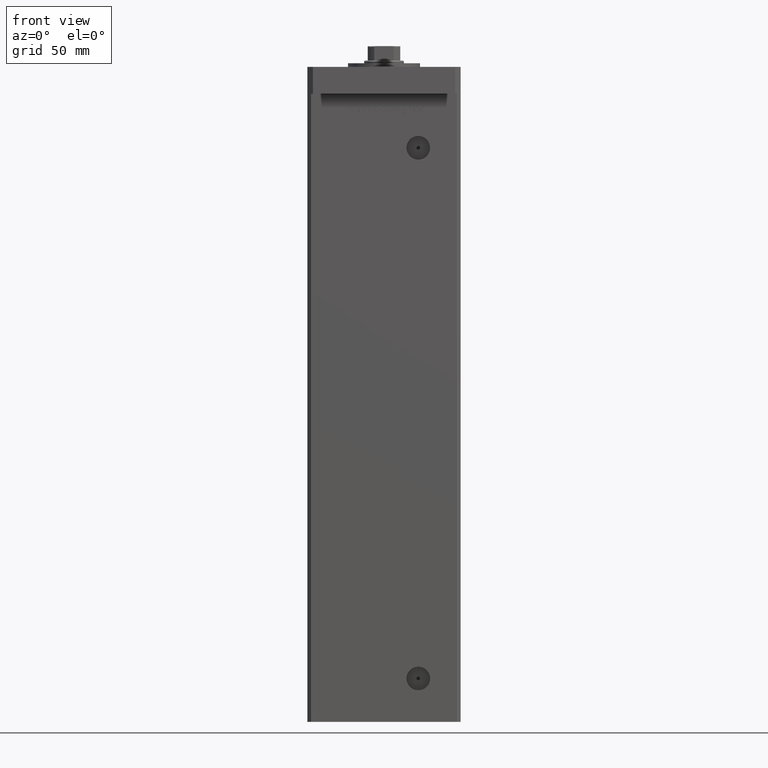
[diagram: clean part render]
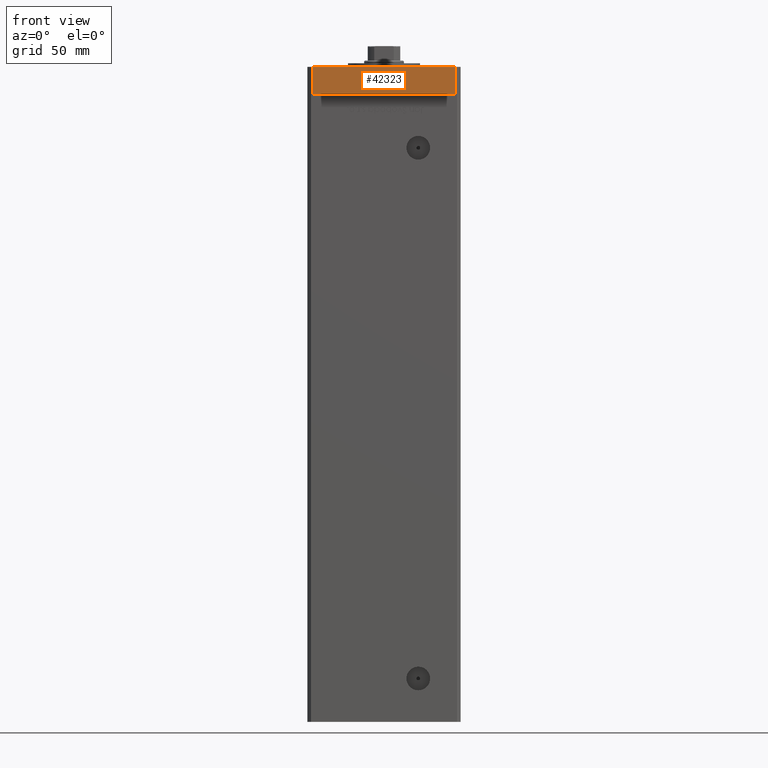
[diagram: same view with one face highlighted and labeled with its STEP entity id]
A machine part, front view. The second image highlights one B-rep face of the part: STEP entity #42323.
In plain terms, the highlighted planar face has unit normal (-0, 1, 0).
Its self-contained STEP definition (entity closure, byte-faithful):
#1050 = AXIS2_PLACEMENT_3D ( 'NONE', #38758, #29804, #8937 ) ;
#1702 = LINE ( 'NONE', #43723, #26239 ) ;
#4688 = ORIENTED_EDGE ( 'NONE', *, *, #12724, .F. ) ;
#5036 = EDGE_CURVE ( 'NONE', #52828, #27276, #34991, .T. ) ;
#5404 = PLANE ( 'NONE',  #1050 ) ;
#8937 = DIRECTION ( 'NONE',  ( -1.000000000000000000, -1.405345600791337191E-15, 0.000000000000000000 ) ) ;
#12724 = EDGE_CURVE ( 'NONE', #36042, #15094, #1702, .T. ) ;
#13513 = CARTESIAN_POINT ( 'NONE',  ( 39.50000000000001421, -64.99999999999988631, 15.00000000000000000 ) ) ;
#13532 = FACE_OUTER_BOUND ( 'NONE', #47920, .T. ) ;
#14149 = DIRECTION ( 'NONE',  ( -0.000000000000000000, -0.000000000000000000, -1.000000000000000000 ) ) ;
#14363 = CARTESIAN_POINT ( 'NONE',  ( -39.50000000000000000, -65.00000000000000000, 0.000000000000000000 ) ) ;
#15094 = VERTEX_POINT ( 'NONE', #13513 ) ;
#18227 = LINE ( 'NONE', #51332, #48803 ) ;
#18238 = DIRECTION ( 'NONE',  ( 1.000000000000000000, 1.405345600791337191E-15, 0.000000000000000000 ) ) ;
#22549 = ORIENTED_EDGE ( 'NONE', *, *, #45313, .T. ) ;
#26239 = VECTOR ( 'NONE', #18238, 1000.000000000000000 ) ;
#26665 = DIRECTION ( 'NONE',  ( -0.000000000000000000, -0.000000000000000000, -1.000000000000000000 ) ) ;
#27276 = VERTEX_POINT ( 'NONE', #42771 ) ;
#29804 = DIRECTION ( 'NONE',  ( -1.405345600791337191E-15, 1.000000000000000000, 0.000000000000000000 ) ) ;
#31090 = VECTOR ( 'NONE', #26665, 1000.000000000000000 ) ;
#34391 = EDGE_CURVE ( 'NONE', #15094, #27276, #39675, .T. ) ;
#34991 = LINE ( 'NONE', #47752, #38980 ) ;
#36042 = VERTEX_POINT ( 'NONE', #47373 ) ;
#38758 = CARTESIAN_POINT ( 'NONE',  ( -39.50000000000000000, -65.00000000000000000, 15.00000000000000000 ) ) ;
#38980 = VECTOR ( 'NONE', #44209, 1000.000000000000000 ) ;
#39675 = LINE ( 'NONE', #51364, #31090 ) ;
#42323 = ADVANCED_FACE ( 'NONE', ( #13532 ), #5404, .F. ) ;
#42771 = CARTESIAN_POINT ( 'NONE',  ( 39.50000000000001421, -64.99999999999988631, 0.000000000000000000 ) ) ;
#43723 = CARTESIAN_POINT ( 'NONE',  ( -39.50000000000000000, -65.00000000000000000, 15.00000000000000000 ) ) ;
#44209 = DIRECTION ( 'NONE',  ( 1.000000000000000000, 1.405345600791337191E-15, 0.000000000000000000 ) ) ;
#45313 = EDGE_CURVE ( 'NONE', #36042, #52828, #18227, .T. ) ;
#47373 = CARTESIAN_POINT ( 'NONE',  ( -39.50000000000000000, -65.00000000000000000, 15.00000000000000000 ) ) ;
#47752 = CARTESIAN_POINT ( 'NONE',  ( -39.50000000000000000, -65.00000000000000000, 0.000000000000000000 ) ) ;
#47920 = EDGE_LOOP ( 'NONE', ( #50464, #48404, #4688, #22549 ) ) ;
#48404 = ORIENTED_EDGE ( 'NONE', *, *, #34391, .F. ) ;
#48803 = VECTOR ( 'NONE', #14149, 1000.000000000000000 ) ;
#50464 = ORIENTED_EDGE ( 'NONE', *, *, #5036, .T. ) ;
#51332 = CARTESIAN_POINT ( 'NONE',  ( -39.50000000000000000, -65.00000000000000000, 15.00000000000000000 ) ) ;
#51364 = CARTESIAN_POINT ( 'NONE',  ( 39.50000000000001421, -64.99999999999988631, 15.00000000000000000 ) ) ;
#52828 = VERTEX_POINT ( 'NONE', #14363 ) ;